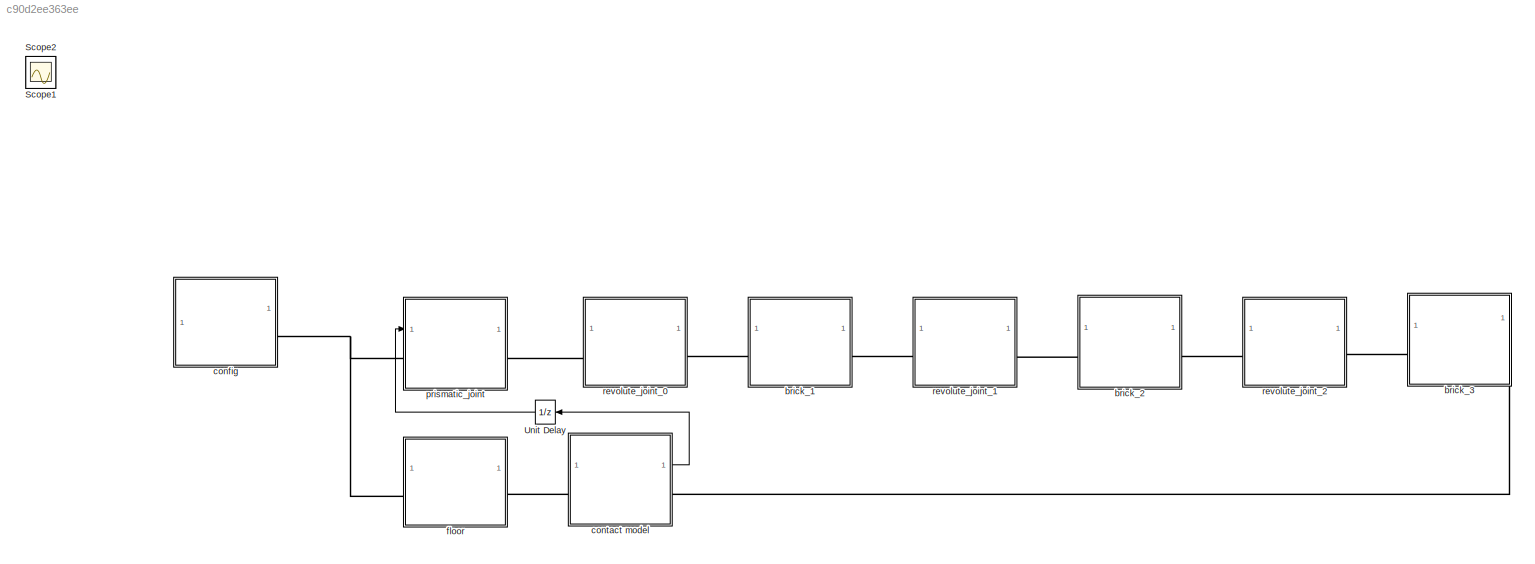
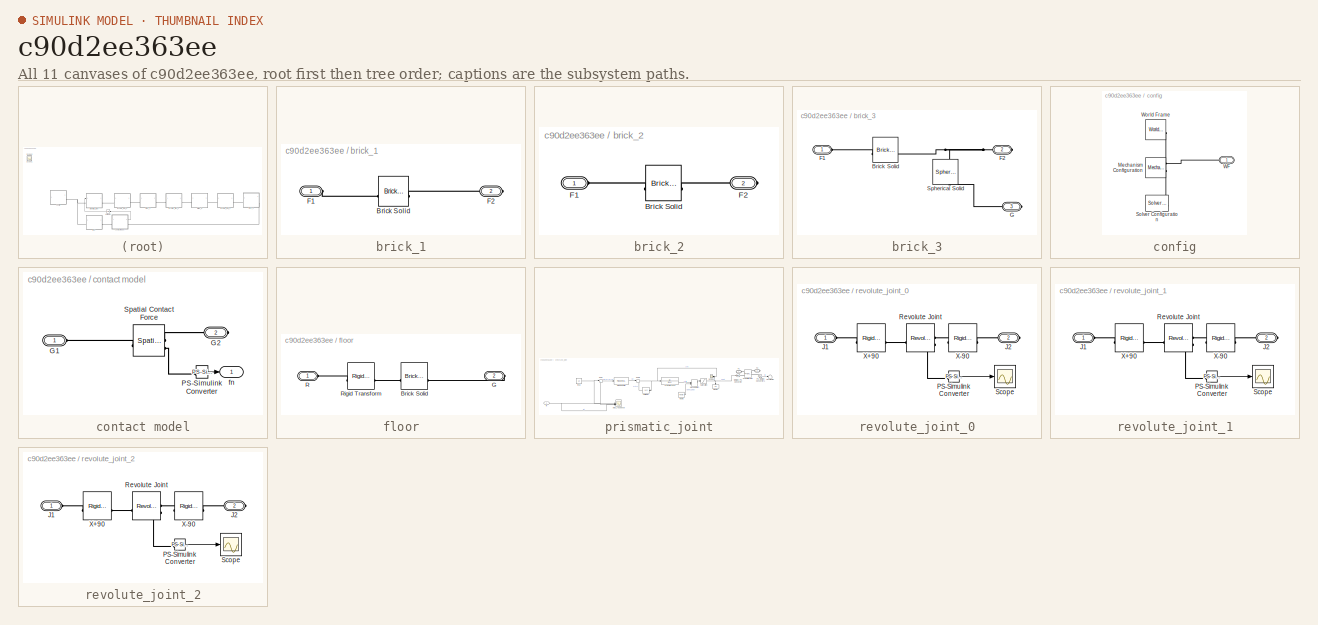
[diagram: thumbnail index - all 11 canvases of the model, root first then tree order]
MODEL slx_c90d2ee363ee
KIND model
CONFIG AbsTol = auto
CONFIG EnableMultiTasking = off
CONFIG FixedStep = auto
CONFIG MaxStep = 0.01
CONFIG MinStep = auto
CONFIG RelTol = 1e-3
CONFIG SampleTimeConstraint = Unconstrained
CONFIG SolverName = ode23t
CONFIG StartTime = 0.0
CONFIG StopTime = 10
BLOCK [Scope] Scope1
  Floating = off
  IOType = viewer
  NumInputPorts = 1
  ScopeSpecificationString = Simulink.scopes.TimeScopeBlockCfg('CurrentConfiguration', extmgr.ConfigurationSet(extmgr.Configuration('Core','General UI',true),extmgr.Configuration('Core','Source UI',true),extmgr.Configuration('Sources','WiredSimulink',true,'DataLoggingVariableName','ScopeData4'),extmgr.Configuration('Visuals','Time Domain',true,'SerializedDisplays',{struct('MinYLimReal','-106.13772','MaxYLimReal','-43.76248','...<+1401ch>
BLOCK [Scope] Scope2
  Floating = off
  IOType = viewer
  NumInputPorts = 1
  ScopeSpecificationString = Simulink.scopes.TimeScopeBlockCfg('CurrentConfiguration', extmgr.ConfigurationSet(extmgr.Configuration('Core','General UI',true),extmgr.Configuration('Core','Source UI',true),extmgr.Configuration('Sources','WiredSimulink',true,'DataLoggingVariableName','ScopeData5'),extmgr.Configuration('Visuals','Time Domain',true,'SerializedDisplays',{struct('MinYLimReal','-5891.18844','MaxYLimReal','1765.6876',...<+1412ch>
BLOCK [UnitDelay] Unit Delay
  HasFrameUpgradeWarning = on
  NameLocation = top
  SampleTime = -1
BLOCK [SubSystem] brick_1
BLOCK [Reference] brick_1/Brick Solid  REF=sm_lib/Body Elements/Brick Solid
  SourceBlock = sm_lib/Body Elements/Brick Solid
  SourceType = Brick Solid
BLOCK [PMIOPort] brick_1/F1
  Side = Left
BLOCK [PMIOPort] brick_1/F2
  Port = 2
  Side = Right
BLOCK [SubSystem] brick_2
BLOCK [Reference] brick_2/Brick Solid  REF=sm_lib/Body Elements/Brick Solid
  SourceBlock = sm_lib/Body Elements/Brick Solid
  SourceType = Brick Solid
BLOCK [PMIOPort] brick_2/F1
  Side = Left
BLOCK [PMIOPort] brick_2/F2
  Port = 2
  Side = Right
BLOCK [SubSystem] brick_3
BLOCK [Reference] brick_3/Brick Solid  REF=sm_lib/Body Elements/Brick Solid
  SourceBlock = sm_lib/Body Elements/Brick Solid
  SourceType = Brick Solid
BLOCK [PMIOPort] brick_3/F1
  Side = Left
BLOCK [PMIOPort] brick_3/F2
  Port = 2
  Side = Right
BLOCK [PMIOPort] brick_3/G
  Port = 3
  Side = Right
BLOCK [Reference] brick_3/Spherical Solid  REF=sm_lib/Body Elements/Spherical Solid
  NameLocation = right
  SourceBlock = sm_lib/Body Elements/Spherical Solid
  SourceType = Spherical Solid
BLOCK [SubSystem] config
BLOCK [Reference] config/Mechanism Configuration   REF=sm_lib/Utilities/Mechanism
Configuration
  SourceBlock = sm_lib/Utilities/Mechanism\nConfiguration
  SourceType = Mechanism\nConfiguration
BLOCK [Reference] config/Solver Configuration   REF=nesl_utility/Solver
Configuration
  SourceBlock = nesl_utility/Solver\nConfiguration
  SourceType = Solver\nConfiguration
BLOCK [PMIOPort] config/WF
  Side = Left
BLOCK [Reference] config/World Frame   REF=sm_lib/Frames and
Transforms/World Frame
  SourceBlock = sm_lib/Frames and\nTransforms/World Frame
  SourceType = World Frame
BLOCK [SubSystem] contact model
BLOCK [PMIOPort] contact model/G1
  Side = Left
BLOCK [PMIOPort] contact model/G2
  Port = 2
  Side = Right
BLOCK [Reference] contact model/PS-Simulink Converter  REF=nesl_utility/PS-Simulink
Converter
  SourceBlock = nesl_utility/PS-Simulink\nConverter
  SourceType = PS-Simulink\nConverter
BLOCK [Reference] contact model/Spatial Contact Force  REF=sm_lib/Forces and
Torques/Spatial
Contact Force
  SourceBlock = sm_lib/Forces and\nTorques/Spatial\nContact Force
  SourceType = Spatial\nContact Force
BLOCK [Outport] contact model/fn
BLOCK [SubSystem] floor
BLOCK [Reference] floor/Brick Solid  REF=sm_lib/Body Elements/Brick Solid
  NameLocation = top
  SourceBlock = sm_lib/Body Elements/Brick Solid
  SourceType = Brick Solid
BLOCK [PMIOPort] floor/G
  Port = 2
  Side = Right
BLOCK [PMIOPort] floor/R
  Side = Left
BLOCK [Reference] floor/Rigid Transform  REF=sm_lib/Frames and
Transforms/Rigid
Transform
  SourceBlock = sm_lib/Frames and\nTransforms/Rigid\nTransform
  SourceType = Rigid\nTransform
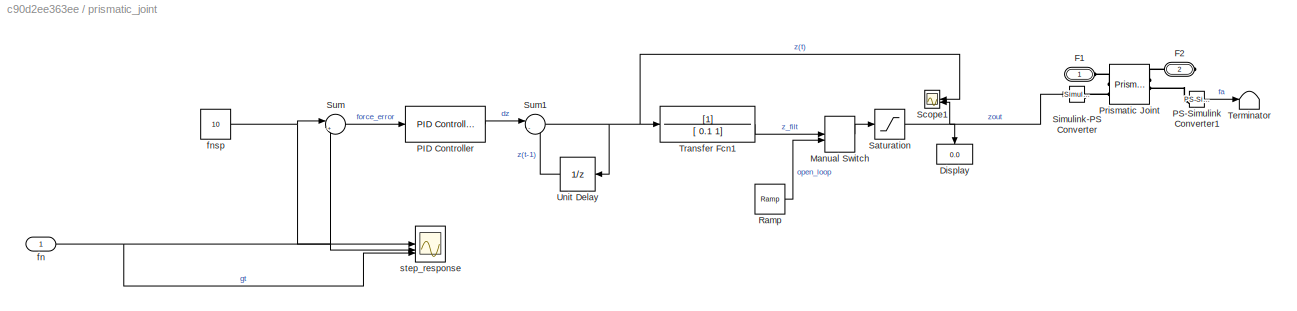
BLOCK [SubSystem] prismatic_joint
  PortSchema = {"entries":[{"content":{"sides":[{"content":{"connectorIds":["LConn1","In1"]},"type":"ConnectorPlacement.EquallySpacedRectSide","uuid":"ee091c21-1fe9-471a-90da-c87a12e8c484"},{"content":{"connectorIds":["RConn1"],"side":"RIGHT"},"type":"ConnectorPlacement.EquallySpacedRectSide","uuid":"4a1b44a7-480f-44c5-ab15-3503fc433b28"},{"content":{"connectorIds":[],"side":"TOP"},"type":"ConnectorPlacement.Equ...<+251ch>
BLOCK [Display] prismatic_joint/Display
  Decimation = 1
  NameLocation = left
BLOCK [PMIOPort] prismatic_joint/F1
  NameLocation = left
  Side = Left
BLOCK [PMIOPort] prismatic_joint/F2
  NameLocation = right
  Port = 2
  Side = Right
BLOCK [ManualSwitch] prismatic_joint/Manual Switch
BLOCK [Reference] prismatic_joint/PID Controller  REF=slpidlib/PID Controller
  SourceBlock = slpidlib/PID Controller
  SourceType = PID 1dof
BLOCK [Reference] prismatic_joint/PS-Simulink Converter1  REF=nesl_utility/PS-Simulink
Converter
  SourceBlock = nesl_utility/PS-Simulink\nConverter
  SourceType = PS-Simulink\nConverter
BLOCK [Reference] prismatic_joint/Prismatic Joint  REF=sm_lib/Joints/Prismatic
Joint
  SourceBlock = sm_lib/Joints/Prismatic\nJoint
  SourceType = Prismatic\nJoint
BLOCK [Reference] prismatic_joint/Ramp  REF=simulink/Sources/Ramp
  SourceBlock = simulink/Sources/Ramp
  SourceType = Ramp
BLOCK [Saturate] prismatic_joint/Saturation
  UpperLimit = 10
BLOCK [Scope] prismatic_joint/Scope1
  Floating = off
  NameLocation = top
  NumInputPorts = 2
  ScopeSpecificationString = Simulink.scopes.TimeScopeBlockCfg('CurrentConfiguration', extmgr.ConfigurationSet(extmgr.Configuration('Core','General UI',true),extmgr.Configuration('Core','Source UI',true),extmgr.Configuration('Sources','WiredSimulink',true,'DataLoggingLimitDataPoints',true,'DataLoggingSaveFormat','Array','DataLoggingDecimation','1','DataLoggingVariableName','ScopeData3','DataLoggingMaxPoints','1e6'),extmgr.Con...<+1781ch>
BLOCK [Reference] prismatic_joint/Simulink-PS Converter  REF=nesl_utility/Simulink-PS
Converter
  SourceBlock = nesl_utility/Simulink-PS\nConverter
  SourceType = Simulink-PS\nConverter
BLOCK [Sum] prismatic_joint/Sum
  Inputs = |+-
BLOCK [Sum] prismatic_joint/Sum1
  Inputs = |-+
BLOCK [Terminator] prismatic_joint/Terminator
BLOCK [TransferFcn] prismatic_joint/Transfer Fcn1
  Denominator = [ 0.1 1]
BLOCK [UnitDelay] prismatic_joint/Unit Delay
  HasFrameUpgradeWarning = on
  NameLocation = top
  SampleTime = -1
BLOCK [Inport] prismatic_joint/fn
BLOCK [Constant] prismatic_joint/fnsp
  Value = 10
BLOCK [Scope] prismatic_joint/step_response
  Floating = off
  NumInputPorts = 3
  ScopeSpecificationString = Simulink.scopes.TimeScopeBlockCfg('CurrentConfiguration', extmgr.ConfigurationSet(extmgr.Configuration('Core','General UI',true),extmgr.Configuration('Core','Source UI',true),extmgr.Configuration('Sources','WiredSimulink',true,'DataLoggingLimitDataPoints',true,'DataLoggingSaveFormat','Array','DataLoggingDecimation','1','DataLoggingVariableName','ScopeData1','DataLoggingMaxPoints','1e6'),extmgr.Con...<+1611ch>
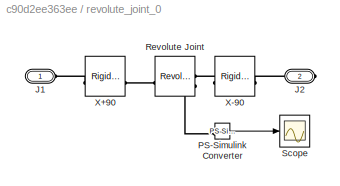
BLOCK [SubSystem] revolute_joint_0
BLOCK [PMIOPort] revolute_joint_0/J1
  Side = Left
BLOCK [PMIOPort] revolute_joint_0/J2
  Port = 2
  Side = Right
BLOCK [Reference] revolute_joint_0/PS-Simulink Converter  REF=nesl_utility/PS-Simulink
Converter
  SourceBlock = nesl_utility/PS-Simulink\nConverter
  SourceType = PS-Simulink\nConverter
BLOCK [Reference] revolute_joint_0/Revolute Joint  REF=sm_lib/Joints/Revolute Joint
  SourceBlock = sm_lib/Joints/Revolute Joint
  SourceType = Revolute Joint
BLOCK [Scope] revolute_joint_0/Scope
  Floating = off
  NumInputPorts = 1
  ScopeSpecificationString = Simulink.scopes.TimeScopeBlockCfg('CurrentConfiguration', extmgr.ConfigurationSet(extmgr.Configuration('Core','General UI',true),extmgr.Configuration('Core','Source UI',true),extmgr.Configuration('Sources','WiredSimulink',true,'DataLoggingSaveFormat','Array','DataLoggingDecimation','1'),extmgr.Configuration('Visuals','Time Domain',true,'SerializedDisplays',{struct('MinYLimReal','-0.01261','MaxYLim...<+1586ch>
BLOCK [Reference] revolute_joint_0/X+90  REF=sm_lib/Frames and
Transforms/Rigid
Transform
  SourceBlock = sm_lib/Frames and\nTransforms/Rigid\nTransform
  SourceType = Rigid\nTransform
BLOCK [Reference] revolute_joint_0/X-90  REF=sm_lib/Frames and
Transforms/Rigid
Transform
  SourceBlock = sm_lib/Frames and\nTransforms/Rigid\nTransform
  SourceType = Rigid\nTransform
BLOCK [SubSystem] revolute_joint_1
BLOCK [PMIOPort] revolute_joint_1/J1
  Side = Left
BLOCK [PMIOPort] revolute_joint_1/J2
  Port = 2
  Side = Right
BLOCK [Reference] revolute_joint_1/PS-Simulink Converter  REF=nesl_utility/PS-Simulink
Converter
  SourceBlock = nesl_utility/PS-Simulink\nConverter
  SourceType = PS-Simulink\nConverter
BLOCK [Reference] revolute_joint_1/Revolute Joint  REF=sm_lib/Joints/Revolute Joint
  SourceBlock = sm_lib/Joints/Revolute Joint
  SourceType = Revolute Joint
BLOCK [Scope] revolute_joint_1/Scope
  Floating = off
  NumInputPorts = 1
  ScopeSpecificationString = Simulink.scopes.TimeScopeBlockCfg('CurrentConfiguration', extmgr.ConfigurationSet(extmgr.Configuration('Core','General UI',true),extmgr.Configuration('Core','Source UI',true),extmgr.Configuration('Sources','WiredSimulink',true,'DataLoggingSaveFormat','Array','DataLoggingDecimation','1'),extmgr.Configuration('Visuals','Time Domain',true,'SerializedDisplays',{struct('MinYLimReal','-0.86357','MaxYLim...<+1559ch>
BLOCK [Reference] revolute_joint_1/X+90  REF=sm_lib/Frames and
Transforms/Rigid
Transform
  SourceBlock = sm_lib/Frames and\nTransforms/Rigid\nTransform
  SourceType = Rigid\nTransform
BLOCK [Reference] revolute_joint_1/X-90  REF=sm_lib/Frames and
Transforms/Rigid
Transform
  SourceBlock = sm_lib/Frames and\nTransforms/Rigid\nTransform
  SourceType = Rigid\nTransform
BLOCK [SubSystem] revolute_joint_2
BLOCK [PMIOPort] revolute_joint_2/J1
  Side = Left
BLOCK [PMIOPort] revolute_joint_2/J2
  Port = 2
  Side = Right
BLOCK [Reference] revolute_joint_2/PS-Simulink Converter  REF=nesl_utility/PS-Simulink
Converter
  SourceBlock = nesl_utility/PS-Simulink\nConverter
  SourceType = PS-Simulink\nConverter
BLOCK [Reference] revolute_joint_2/Revolute Joint  REF=sm_lib/Joints/Revolute Joint
  SourceBlock = sm_lib/Joints/Revolute Joint
  SourceType = Revolute Joint
BLOCK [Scope] revolute_joint_2/Scope
  Floating = off
  NumInputPorts = 1
  ScopeSpecificationString = Simulink.scopes.TimeScopeBlockCfg('CurrentConfiguration', extmgr.ConfigurationSet(extmgr.Configuration('Core','General UI',true),extmgr.Configuration('Core','Source UI',true),extmgr.Configuration('Sources','WiredSimulink',true,'DataLoggingLimitDataPoints',true,'DataLoggingSaveFormat','Array','DataLoggingDecimation','1'),extmgr.Configuration('Visuals','Time Domain',true,'DisplayPropertyDefaults',st...<+829ch>
BLOCK [Reference] revolute_joint_2/X+90  REF=sm_lib/Frames and
Transforms/Rigid
Transform
  SourceBlock = sm_lib/Frames and\nTransforms/Rigid\nTransform
  SourceType = Rigid\nTransform
BLOCK [Reference] revolute_joint_2/X-90  REF=sm_lib/Frames and
Transforms/Rigid
Transform
  SourceBlock = sm_lib/Frames and\nTransforms/Rigid\nTransform
  SourceType = Rigid\nTransform
LINE Unit Delay:1 -> prismatic_joint:1
LINE contact model/PS-Simulink Converter:1 -> contact model/fn:1
LINE contact model:1 -> Unit Delay:1
LINE prismatic_joint/Manual Switch:1 -> prismatic_joint/Saturation:1
LINE prismatic_joint/PID Controller:1 -> prismatic_joint/Sum1:1
LINE prismatic_joint/PS-Simulink Converter1:1 -> prismatic_joint/Terminator:1
LINE prismatic_joint/Ramp:1 -> prismatic_joint/Manual Switch:2
NET prismatic_joint/Saturation:1 -> prismatic_joint/Display:1, prismatic_joint/Scope1:2, prismatic_joint/Simulink-PS Converter:1
NET prismatic_joint/Sum1:1 -> prismatic_joint/Scope1:1, prismatic_joint/Transfer Fcn1:1, prismatic_joint/Unit Delay:1
LINE prismatic_joint/Sum:1 -> prismatic_joint/PID Controller:1
LINE prismatic_joint/Transfer Fcn1:1 -> prismatic_joint/Manual Switch:1
LINE prismatic_joint/Unit Delay:1 -> prismatic_joint/Sum1:2
NET prismatic_joint/fn:1 -> prismatic_joint/Sum:2, prismatic_joint/step_response:2, prismatic_joint/step_response:3
NET prismatic_joint/fnsp:1 -> prismatic_joint/Sum:1, prismatic_joint/step_response:1
LINE revolute_joint_0/PS-Simulink Converter:1 -> revolute_joint_0/Scope:1
LINE revolute_joint_1/PS-Simulink Converter:1 -> revolute_joint_1/Scope:1
LINE revolute_joint_2/PS-Simulink Converter:1 -> revolute_joint_2/Scope:1
PLINE brick_1/Brick Solid:LConn1 -- brick_1/F1:RConn1
PLINE brick_1/Brick Solid:RConn1 -- brick_1/F2:RConn1
PLINE brick_1:LConn1 -- revolute_joint_0:RConn1
PLINE brick_1:RConn1 -- revolute_joint_1:LConn1
PLINE brick_2/Brick Solid:LConn1 -- brick_2/F1:RConn1
PLINE brick_2/Brick Solid:RConn1 -- brick_2/F2:RConn1
PLINE brick_2:LConn1 -- revolute_joint_1:RConn1
PLINE brick_2:RConn1 -- revolute_joint_2:LConn1
PLINE brick_3/Brick Solid:LConn1 -- brick_3/F1:RConn1
PNET net1: brick_3/Brick Solid:RConn1 -- brick_3/F2:RConn1 -- brick_3/Spherical Solid:RConn1
PLINE brick_3/G:RConn1 -- brick_3/Spherical Solid:LConn1
PLINE brick_3:LConn1 -- revolute_joint_2:RConn1
PLINE brick_3:RConn2 -- contact model:RConn1
PNET net2: config/Mechanism Configuration :RConn1 -- config/Solver Configuration :RConn1 -- config/WF:RConn1 -- config/World Frame :RConn1
PNET net3: config:LConn1 -- floor:LConn1 -- prismatic_joint:LConn1
PLINE contact model/G1:RConn1 -- contact model/Spatial Contact Force:LConn1
PLINE contact model/G2:RConn1 -- contact model/Spatial Contact Force:RConn1
PLINE contact model/PS-Simulink Converter:LConn1 -- contact model/Spatial Contact Force:RConn2
PLINE contact model:LConn1 -- floor:RConn1
PLINE floor/Brick Solid:LConn1 -- floor/G:RConn1
PLINE floor/Brick Solid:RConn1 -- floor/Rigid Transform:RConn1
PLINE floor/R:RConn1 -- floor/Rigid Transform:LConn1
PLINE prismatic_joint/F1:RConn1 -- prismatic_joint/Prismatic Joint:LConn1
PLINE prismatic_joint/F2:RConn1 -- prismatic_joint/Prismatic Joint:RConn1
PLINE prismatic_joint/PS-Simulink Converter1:LConn1 -- prismatic_joint/Prismatic Joint:RConn2
PLINE prismatic_joint/Prismatic Joint:LConn2 -- prismatic_joint/Simulink-PS Converter:RConn1
PLINE prismatic_joint:RConn1 -- revolute_joint_0:LConn1
PLINE revolute_joint_0/J1:RConn1 -- revolute_joint_0/X+90:LConn1
PLINE revolute_joint_0/J2:RConn1 -- revolute_joint_0/X-90:RConn1
PLINE revolute_joint_0/PS-Simulink Converter:LConn1 -- revolute_joint_0/Revolute Joint:RConn2
PLINE revolute_joint_0/Revolute Joint:LConn1 -- revolute_joint_0/X+90:RConn1
PLINE revolute_joint_0/Revolute Joint:RConn1 -- revolute_joint_0/X-90:LConn1
PLINE revolute_joint_1/J1:RConn1 -- revolute_joint_1/X+90:LConn1
PLINE revolute_joint_1/J2:RConn1 -- revolute_joint_1/X-90:RConn1
PLINE revolute_joint_1/PS-Simulink Converter:LConn1 -- revolute_joint_1/Revolute Joint:RConn2
PLINE revolute_joint_1/Revolute Joint:LConn1 -- revolute_joint_1/X+90:RConn1
PLINE revolute_joint_1/Revolute Joint:RConn1 -- revolute_joint_1/X-90:LConn1
PLINE revolute_joint_2/J1:RConn1 -- revolute_joint_2/X+90:LConn1
PLINE revolute_joint_2/J2:RConn1 -- revolute_joint_2/X-90:RConn1
PLINE revolute_joint_2/PS-Simulink Converter:LConn1 -- revolute_joint_2/Revolute Joint:RConn2
PLINE revolute_joint_2/Revolute Joint:LConn1 -- revolute_joint_2/X+90:RConn1
PLINE revolute_joint_2/Revolute Joint:RConn1 -- revolute_joint_2/X-90:LConn1
note: NET lines group one-source signal fan-out (src -> all destinations, sorted); 1:1 wires keep LINE; PNET lines group multi-terminal physical nets as a canonical sorted terminal list (undirected conserving connections); 2-terminal nets keep the pairwise PLINE form
